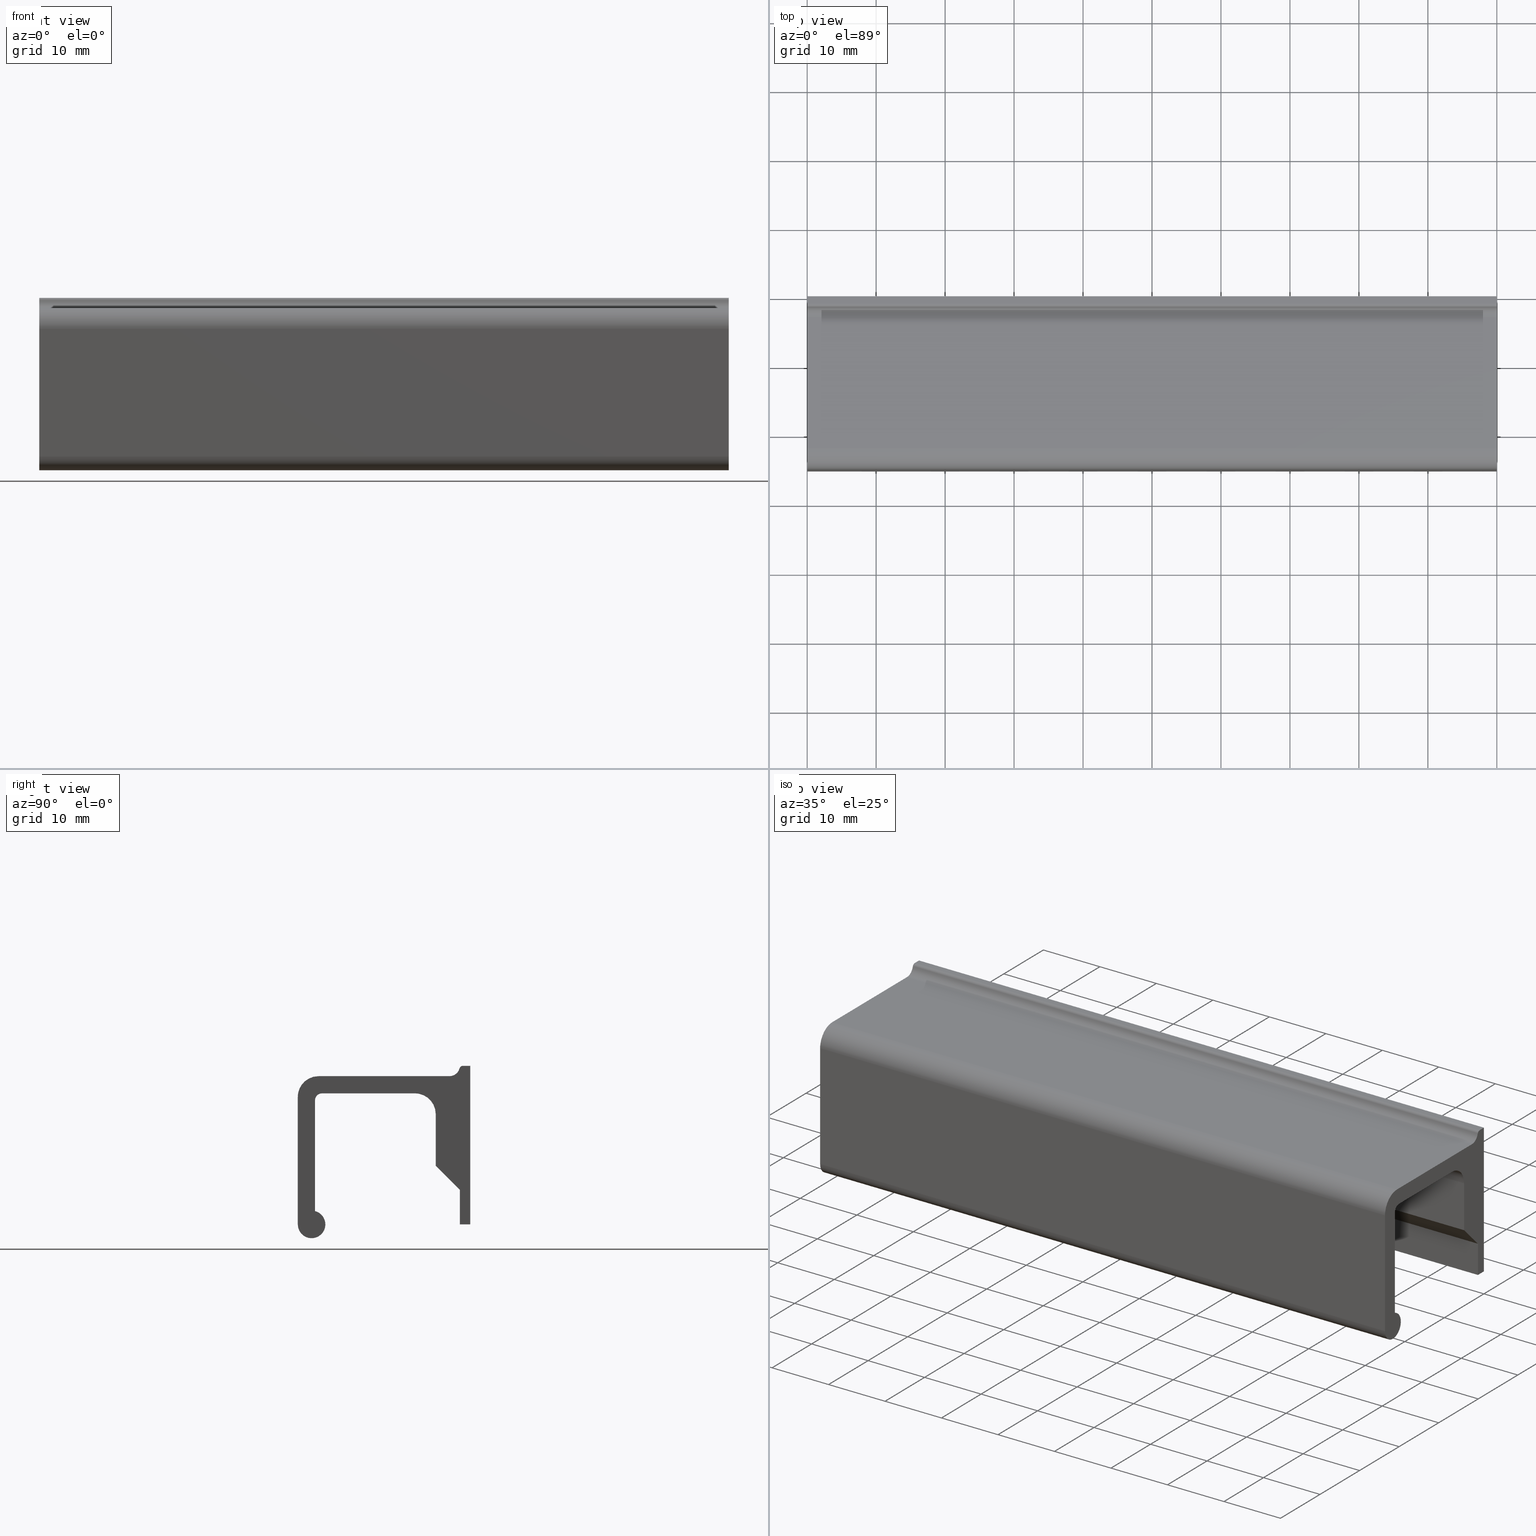
[diagram: canonical four-view strip — front | top / right | iso, engineering-drawing reading convention]
A machine part, canonical four-view strip (front | top / right | iso — engineering-drawing reading convention). The complete STEP part file that produces these views, byte-faithful:
ISO-10303-21;
HEADER;
/****************************************************************
 * Generated by software with PDE/Lib inside                    *
 * PDElib Version 4.4.1-0003, patched  Thursday August 19 11:58 *
 * International Technegroup Inc. (www.iti-oh.com)              *
 ****************************************************************/
FILE_DESCRIPTION((''),'2;1');
FILE_NAME('','2005-10-07T12:38:59',(''),(''),'','CADfix','');
FILE_SCHEMA(('AUTOMOTIVE_DESIGN'));
ENDSEC;
DATA;
#5=APPLICATION_CONTEXT('automotive design');
#6=APPLICATION_PROTOCOL_DEFINITION('Draft International Standard','automotive_design',1998,#5);
#7=PRODUCT_CONTEXT('None',#5,'mechanical');
#8=PRODUCT('pull','','None',(#7));
#9=PRODUCT_RELATED_PRODUCT_CATEGORY('part','description',(#8));
#10=PRODUCT_DEFINITION_FORMATION('None','None',#8);
#11=PRODUCT_DEFINITION_CONTEXT('part definition',#5,'design');
#12=PRODUCT_DEFINITION('None','None',#10,#11);
#18=(NAMED_UNIT(*)PLANE_ANGLE_UNIT()SI_UNIT($,.RADIAN.));
#19=DIMENSIONAL_EXPONENTS(0.0,0.0,0.0,0.0,0.0,0.0,0.0);
#20=PLANE_ANGLE_MEASURE_WITH_UNIT(PLANE_ANGLE_MEASURE(0.017453292500000),#18);
#24=(CONVERSION_BASED_UNIT('DEGREE',#20)NAMED_UNIT(#19)PLANE_ANGLE_UNIT());
#28=(NAMED_UNIT(*)SI_UNIT($,.STERADIAN.)SOLID_ANGLE_UNIT());
#32=(LENGTH_UNIT()NAMED_UNIT(*)SI_UNIT(.MILLI.,.METRE.));
#34=UNCERTAINTY_MEASURE_WITH_UNIT(LENGTH_MEASURE(0.001000000000000),#32,'DISTANCE_ACCURACY_VALUE','');
#36=(GEOMETRIC_REPRESENTATION_CONTEXT(3)GLOBAL_UNCERTAINTY_ASSIGNED_CONTEXT((#34))GLOBAL_UNIT_ASSIGNED_CONTEXT((#24,#28,#32))REPRESENTATION_CONTEXT('None','None'));
#37=AXIS2_PLACEMENT_3D('',#38,#39,#40);
#38=CARTESIAN_POINT('',(0.0,0.0,0.0));
#39=DIRECTION('',(0.0,0.0,1.0));
#40=DIRECTION('',(1.0,0.0,0.0));
#41=ADVANCED_BREP_SHAPE_REPRESENTATION('',(#37,#707),#36);
#42=PRODUCT_DEFINITION_SHAPE('','',#12);
#43=SHAPE_DEFINITION_REPRESENTATION(#42,#41);
#44=CARTESIAN_POINT('',(0.0,-26.248749951545150,1.248542813103981));
#45=CARTESIAN_POINT('',(0.0,1.248750622097403,1.248542813103981));
#46=CARTESIAN_POINT('',(0.0,-26.248749951545150,-26.244396567910631));
#47=CARTESIAN_POINT('',(0.0,1.248750622097403,-26.244396567910631));
#48=B_SPLINE_SURFACE_WITH_KNOTS('',1,1,((#44,#46),(#45,#47)),.UNSPECIFIED.,.F.,.F.,.U.,(2,2),(2,2),(0.0,27.497500573642551),(0.0,27.492939381014612),.UNSPECIFIED.);
#49=CARTESIAN_POINT('',(0.0,-1.063500000000118,-6.511844E-017));
#50=VERTEX_POINT('',#49);
#51=CARTESIAN_POINT('',(0.0,-1.547630854851320,-0.374998488290413));
#52=VERTEX_POINT('',#51);
#53=CARTESIAN_POINT('',(0.0,-1.063500000000118,-6.511844E-017));
#54=CARTESIAN_POINT('',(0.0,-1.450802654198313,0.000001007806392));
#55=CARTESIAN_POINT('',(0.0,-1.547630854851320,-0.374998488290413));
#63=(BOUNDED_CURVE()B_SPLINE_CURVE(2,(#53,#54,#55),.UNSPECIFIED.,.F.,.U.)CURVE()GEOMETRIC_REPRESENTATION_ITEM()QUASI_UNIFORM_CURVE()RATIONAL_B_SPLINE_CURVE((1.0,0.790569096345667,1.0))REPRESENTATION_ITEM(''));
#64=EDGE_CURVE('',#50,#52,#63,.T.);
#65=ORIENTED_EDGE('',*,*,#64,.F.);
#66=CARTESIAN_POINT('',(0.0,0.0,0.0));
#67=VERTEX_POINT('',#66);
#68=CARTESIAN_POINT('',(0.0,0.0,0.0));
#69=CARTESIAN_POINT('',(0.0,-1.063500000000118,-6.511844E-017));
#70=QUASI_UNIFORM_CURVE('',1,(#68,#69),.UNSPECIFIED.,.F.,.U.);
#71=EDGE_CURVE('',#67,#50,#70,.T.);
#72=ORIENTED_EDGE('',*,*,#71,.F.);
#73=CARTESIAN_POINT('',(0.0,0.0,-23.0));
#74=VERTEX_POINT('',#73);
#75=CARTESIAN_POINT('',(0.0,0.0,-23.0));
#76=CARTESIAN_POINT('',(0.0,0.0,0.0));
#77=QUASI_UNIFORM_CURVE('',1,(#75,#76),.UNSPECIFIED.,.F.,.U.);
#78=EDGE_CURVE('',#74,#67,#77,.T.);
#79=ORIENTED_EDGE('',*,*,#78,.F.);
#80=CARTESIAN_POINT('',(0.0,-1.500000000000000,-23.0));
#81=VERTEX_POINT('',#80);
#82=CARTESIAN_POINT('',(0.0,-1.500000000000000,-23.0));
#83=CARTESIAN_POINT('',(0.0,0.0,-23.0));
#84=QUASI_UNIFORM_CURVE('',1,(#82,#83),.UNSPECIFIED.,.F.,.U.);
#85=EDGE_CURVE('',#81,#74,#84,.T.);
#86=ORIENTED_EDGE('',*,*,#85,.F.);
#87=CARTESIAN_POINT('',(0.0,-1.500000000000000,-18.0));
#88=VERTEX_POINT('',#87);
#89=CARTESIAN_POINT('',(0.0,-1.500000000000000,-18.0));
#90=CARTESIAN_POINT('',(0.0,-1.500000000000000,-23.0));
#91=QUASI_UNIFORM_CURVE('',1,(#89,#90),.UNSPECIFIED.,.F.,.U.);
#92=EDGE_CURVE('',#88,#81,#91,.T.);
#93=ORIENTED_EDGE('',*,*,#92,.F.);
#94=CARTESIAN_POINT('',(0.0,-5.0,-14.500000000000000));
#95=VERTEX_POINT('',#94);
#96=CARTESIAN_POINT('',(0.0,-5.0,-14.500000000000000));
#97=CARTESIAN_POINT('',(0.0,-1.500000000000000,-18.0));
#98=QUASI_UNIFORM_CURVE('',1,(#96,#97),.UNSPECIFIED.,.F.,.U.);
#99=EDGE_CURVE('',#95,#88,#98,.T.);
#100=ORIENTED_EDGE('',*,*,#99,.F.);
#101=CARTESIAN_POINT('',(0.0,-5.0,-7.0));
#102=VERTEX_POINT('',#101);
#103=CARTESIAN_POINT('',(0.0,-5.0,-7.0));
#104=CARTESIAN_POINT('',(0.0,-5.0,-14.500000000000000));
#105=QUASI_UNIFORM_CURVE('',1,(#103,#104),.UNSPECIFIED.,.F.,.U.);
#106=EDGE_CURVE('',#102,#95,#105,.T.);
#107=ORIENTED_EDGE('',*,*,#106,.F.);
#108=CARTESIAN_POINT('',(0.0,-8.0,-4.0));
#109=VERTEX_POINT('',#108);
#110=CARTESIAN_POINT('',(0.0,-5.0,-7.0));
#111=CARTESIAN_POINT('',(0.0,-5.000000000000001,-4.000000000000000));
#112=CARTESIAN_POINT('',(0.0,-8.0,-4.0));
#120=(BOUNDED_CURVE()B_SPLINE_CURVE(2,(#110,#111,#112),.UNSPECIFIED.,.F.,.U.)CURVE()GEOMETRIC_REPRESENTATION_ITEM()QUASI_UNIFORM_CURVE()RATIONAL_B_SPLINE_CURVE((1.0,0.707106781186548,1.0))REPRESENTATION_ITEM(''));
#121=EDGE_CURVE('',#102,#109,#120,.T.);
#122=ORIENTED_EDGE('',*,*,#121,.T.);
#123=CARTESIAN_POINT('',(0.0,-21.500000000000000,-4.0));
#124=VERTEX_POINT('',#123);
#125=CARTESIAN_POINT('',(0.0,-21.500000000000000,-4.0));
#126=CARTESIAN_POINT('',(0.0,-8.0,-4.0));
#127=QUASI_UNIFORM_CURVE('',1,(#125,#126),.UNSPECIFIED.,.F.,.U.);
#128=EDGE_CURVE('',#124,#109,#127,.T.);
#129=ORIENTED_EDGE('',*,*,#128,.F.);
#130=CARTESIAN_POINT('',(0.0,-22.500000000000000,-5.0));
#131=VERTEX_POINT('',#130);
#132=CARTESIAN_POINT('',(0.0,-21.500000000000000,-4.0));
#133=CARTESIAN_POINT('',(0.0,-22.500000000000000,-4.000000000000000));
#134=CARTESIAN_POINT('',(0.0,-22.500000000000000,-5.0));
#142=(BOUNDED_CURVE()B_SPLINE_CURVE(2,(#132,#133,#134),.UNSPECIFIED.,.F.,.U.)CURVE()GEOMETRIC_REPRESENTATION_ITEM()QUASI_UNIFORM_CURVE()RATIONAL_B_SPLINE_CURVE((1.0,0.707106781186548,1.0))REPRESENTATION_ITEM(''));
#143=EDGE_CURVE('',#124,#131,#142,.T.);
#144=ORIENTED_EDGE('',*,*,#143,.T.);
#145=CARTESIAN_POINT('',(0.0,-22.500000000000000,-21.063508326896400));
#146=VERTEX_POINT('',#145);
#147=CARTESIAN_POINT('',(0.0,-22.500000000000000,-21.063508326896400));
#148=CARTESIAN_POINT('',(0.0,-22.500000000000000,-5.0));
#149=QUASI_UNIFORM_CURVE('',1,(#147,#148),.UNSPECIFIED.,.F.,.U.);
#150=EDGE_CURVE('',#146,#131,#149,.T.);
#151=ORIENTED_EDGE('',*,*,#150,.F.);
#152=CARTESIAN_POINT('',(0.0,-25.0,-23.0));
#153=VERTEX_POINT('',#152);
#154=CARTESIAN_POINT('',(0.0,-25.0,-23.0));
#155=CARTESIAN_POINT('',(0.0,-24.999999999999993,-24.838262194303105));
#156=CARTESIAN_POINT('',(0.0,-23.168254401781031,-24.992910047212700));
#157=CARTESIAN_POINT('',(0.0,-21.336508803562065,-25.147557900122276));
#158=CARTESIAN_POINT('',(0.0,-21.028309543718699,-23.335315887797190));
#159=CARTESIAN_POINT('',(0.0,-20.720110283875314,-21.523073875472090));
#160=CARTESIAN_POINT('',(0.0,-22.500000000000000,-21.063508326896400));
#168=(BOUNDED_CURVE()B_SPLINE_CURVE(2,(#154,#155,#156,#157,#158,#159,#160),.UNSPECIFIED.,.F.,.U.)B_SPLINE_CURVE_WITH_KNOTS((3,2,2,3),(0.0,0.333333333333333,0.666666666666667,1.0),.UNSPECIFIED.)CURVE()GEOMETRIC_REPRESENTATION_ITEM()RATIONAL_B_SPLINE_CURVE((1.0,0.736249686210635,1.0,0.736249686210635,1.0,0.736249686210635,1.0))REPRESENTATION_ITEM(''));
#169=EDGE_CURVE('',#153,#146,#168,.T.);
#170=ORIENTED_EDGE('',*,*,#169,.F.);
#171=CARTESIAN_POINT('',(0.0,-25.0,-4.500000000000200));
#172=VERTEX_POINT('',#171);
#173=CARTESIAN_POINT('',(0.0,-25.0,-4.500000000000200));
#174=CARTESIAN_POINT('',(0.0,-25.0,-23.0));
#175=QUASI_UNIFORM_CURVE('',1,(#173,#174),.UNSPECIFIED.,.F.,.U.);
#176=EDGE_CURVE('',#172,#153,#175,.T.);
#177=ORIENTED_EDGE('',*,*,#176,.F.);
#178=CARTESIAN_POINT('',(0.0,-22.0,-1.500000000000000));
#179=VERTEX_POINT('',#178);
#180=CARTESIAN_POINT('',(0.0,-22.0,-1.500000000000000));
#181=CARTESIAN_POINT('',(0.0,-25.0,-1.500000000000201));
#182=CARTESIAN_POINT('',(0.0,-25.0,-4.500000000000200));
#190=(BOUNDED_CURVE()B_SPLINE_CURVE(2,(#180,#181,#182),.UNSPECIFIED.,.F.,.U.)CURVE()GEOMETRIC_REPRESENTATION_ITEM()QUASI_UNIFORM_CURVE()RATIONAL_B_SPLINE_CURVE((1.0,0.707106781186548,1.0))REPRESENTATION_ITEM(''));
#191=EDGE_CURVE('',#179,#172,#190,.T.);
#192=ORIENTED_EDGE('',*,*,#191,.F.);
#193=CARTESIAN_POINT('',(0.0,-3.0,-1.500000000000000));
#194=VERTEX_POINT('',#193);
#195=CARTESIAN_POINT('',(0.0,-3.0,-1.500000000000000));
#196=CARTESIAN_POINT('',(0.0,-22.0,-1.500000000000000));
#197=QUASI_UNIFORM_CURVE('',1,(#195,#196),.UNSPECIFIED.,.F.,.U.);
#198=EDGE_CURVE('',#194,#179,#197,.T.);
#199=ORIENTED_EDGE('',*,*,#198,.F.);
#200=CARTESIAN_POINT('',(0.0,-3.0,-1.500000000000000));
#201=CARTESIAN_POINT('',(0.0,-1.838103747107881,-1.500000000000000));
#202=CARTESIAN_POINT('',(0.0,-1.547630854851321,-0.374998488290413));
#210=(BOUNDED_CURVE()B_SPLINE_CURVE(2,(#200,#201,#202),.UNSPECIFIED.,.F.,.U.)CURVE()GEOMETRIC_REPRESENTATION_ITEM()QUASI_UNIFORM_CURVE()RATIONAL_B_SPLINE_CURVE((1.0,0.790569096345667,1.0))REPRESENTATION_ITEM(''));
#211=EDGE_CURVE('',#194,#52,#210,.T.);
#212=ORIENTED_EDGE('',*,*,#211,.T.);
#213=EDGE_LOOP('',(#65,#72,#79,#86,#93,#100,#107,#122,#129,#144,#151,#170,#177,#192,#199,#212));
#214=FACE_OUTER_BOUND('',#213,.T.);
#215=ADVANCED_FACE('',(#214),#48,.T.);
#216=CARTESIAN_POINT('',(100.0,-26.248749951545150,1.248542813103981));
#217=CARTESIAN_POINT('',(100.0,1.248750622097403,1.248542813103981));
#218=CARTESIAN_POINT('',(100.0,-26.248749951545150,-26.244396567910631));
#219=CARTESIAN_POINT('',(100.0,1.248750622097403,-26.244396567910631));
#220=B_SPLINE_SURFACE_WITH_KNOTS('',1,1,((#216,#218),(#217,#219)),.UNSPECIFIED.,.F.,.F.,.U.,(2,2),(2,2),(0.0,27.497500573642551),(0.0,27.492939381014612),.UNSPECIFIED.);
#221=CARTESIAN_POINT('',(100.0,-1.063500000000118,-6.511844E-017));
#222=VERTEX_POINT('',#221);
#223=CARTESIAN_POINT('',(100.0,-1.547630854851320,-0.374998488290413));
#224=VERTEX_POINT('',#223);
#225=CARTESIAN_POINT('',(100.0,-1.063500000000118,-6.511844E-017));
#226=CARTESIAN_POINT('',(100.0,-1.450802654198313,0.000001007806392));
#227=CARTESIAN_POINT('',(100.0,-1.547630854851320,-0.374998488290413));
#235=(BOUNDED_CURVE()B_SPLINE_CURVE(2,(#225,#226,#227),.UNSPECIFIED.,.F.,.U.)CURVE()GEOMETRIC_REPRESENTATION_ITEM()QUASI_UNIFORM_CURVE()RATIONAL_B_SPLINE_CURVE((1.0,0.790569096345667,1.0))REPRESENTATION_ITEM(''));
#236=EDGE_CURVE('',#222,#224,#235,.T.);
#237=ORIENTED_EDGE('',*,*,#236,.T.);
#238=CARTESIAN_POINT('',(100.0,-3.0,-1.500000000000000));
#239=VERTEX_POINT('',#238);
#240=CARTESIAN_POINT('',(100.0,-3.0,-1.500000000000000));
#241=CARTESIAN_POINT('',(99.999999999999986,-1.838103747107881,-1.500000000000000));
#242=CARTESIAN_POINT('',(100.0,-1.547630854851321,-0.374998488290413));
#250=(BOUNDED_CURVE()B_SPLINE_CURVE(2,(#240,#241,#242),.UNSPECIFIED.,.F.,.U.)CURVE()GEOMETRIC_REPRESENTATION_ITEM()QUASI_UNIFORM_CURVE()RATIONAL_B_SPLINE_CURVE((1.0,0.790569096345667,1.0))REPRESENTATION_ITEM(''));
#251=EDGE_CURVE('',#239,#224,#250,.T.);
#252=ORIENTED_EDGE('',*,*,#251,.F.);
#253=CARTESIAN_POINT('',(100.0,-22.0,-1.500000000000000));
#254=VERTEX_POINT('',#253);
#255=CARTESIAN_POINT('',(100.0,-3.0,-1.500000000000000));
#256=CARTESIAN_POINT('',(100.0,-22.0,-1.500000000000000));
#257=QUASI_UNIFORM_CURVE('',1,(#255,#256),.UNSPECIFIED.,.F.,.U.);
#258=EDGE_CURVE('',#239,#254,#257,.T.);
#259=ORIENTED_EDGE('',*,*,#258,.T.);
#260=CARTESIAN_POINT('',(100.0,-25.0,-4.500000000000200));
#261=VERTEX_POINT('',#260);
#262=CARTESIAN_POINT('',(100.0,-22.0,-1.500000000000200));
#263=CARTESIAN_POINT('',(100.0,-25.0,-1.500000000000201));
#264=CARTESIAN_POINT('',(100.0,-25.0,-4.500000000000200));
#272=(BOUNDED_CURVE()B_SPLINE_CURVE(2,(#262,#263,#264),.UNSPECIFIED.,.F.,.U.)CURVE()GEOMETRIC_REPRESENTATION_ITEM()QUASI_UNIFORM_CURVE()RATIONAL_B_SPLINE_CURVE((1.0,0.707106781186548,1.0))REPRESENTATION_ITEM(''));
#273=EDGE_CURVE('',#254,#261,#272,.T.);
#274=ORIENTED_EDGE('',*,*,#273,.T.);
#275=CARTESIAN_POINT('',(100.0,-25.0,-23.0));
#276=VERTEX_POINT('',#275);
#277=CARTESIAN_POINT('',(100.0,-25.0,-4.500000000000200));
#278=CARTESIAN_POINT('',(100.0,-25.0,-23.0));
#279=QUASI_UNIFORM_CURVE('',1,(#277,#278),.UNSPECIFIED.,.F.,.U.);
#280=EDGE_CURVE('',#261,#276,#279,.T.);
#281=ORIENTED_EDGE('',*,*,#280,.T.);
#282=CARTESIAN_POINT('',(100.0,-22.500000000000000,-21.063508326896400));
#283=VERTEX_POINT('',#282);
#284=CARTESIAN_POINT('',(100.0,-25.0,-23.0));
#285=CARTESIAN_POINT('',(99.999999999999986,-24.999999999999993,-24.838262194303105));
#286=CARTESIAN_POINT('',(100.0,-23.168254401781031,-24.992910047212700));
#287=CARTESIAN_POINT('',(99.999999999999986,-21.336508803562065,-25.147557900122276));
#288=CARTESIAN_POINT('',(100.0,-21.028309543718699,-23.335315887797190));
#289=CARTESIAN_POINT('',(99.999999999999986,-20.720110283875314,-21.523073875472090));
#290=CARTESIAN_POINT('',(100.0,-22.499999999999972,-21.063508326896301));
#298=(BOUNDED_CURVE()B_SPLINE_CURVE(2,(#284,#285,#286,#287,#288,#289,#290),.UNSPECIFIED.,.F.,.U.)B_SPLINE_CURVE_WITH_KNOTS((3,2,2,3),(0.0,0.333333333333333,0.666666666666667,1.0),.UNSPECIFIED.)CURVE()GEOMETRIC_REPRESENTATION_ITEM()RATIONAL_B_SPLINE_CURVE((1.0,0.736249686210635,1.0,0.736249686210635,1.0,0.736249686210635,1.0))REPRESENTATION_ITEM(''));
#299=EDGE_CURVE('',#276,#283,#298,.T.);
#300=ORIENTED_EDGE('',*,*,#299,.T.);
#301=CARTESIAN_POINT('',(100.0,-22.500000000000000,-5.0));
#302=VERTEX_POINT('',#301);
#303=CARTESIAN_POINT('',(100.0,-22.500000000000000,-21.063508326896400));
#304=CARTESIAN_POINT('',(100.0,-22.500000000000000,-5.0));
#305=QUASI_UNIFORM_CURVE('',1,(#303,#304),.UNSPECIFIED.,.F.,.U.);
#306=EDGE_CURVE('',#283,#302,#305,.T.);
#307=ORIENTED_EDGE('',*,*,#306,.T.);
#308=CARTESIAN_POINT('',(100.0,-21.500000000000000,-4.0));
#309=VERTEX_POINT('',#308);
#310=CARTESIAN_POINT('',(100.0,-21.500000000000000,-4.0));
#311=CARTESIAN_POINT('',(100.0,-22.500000000000000,-4.000000000000000));
#312=CARTESIAN_POINT('',(100.0,-22.500000000000000,-5.0));
#320=(BOUNDED_CURVE()B_SPLINE_CURVE(2,(#310,#311,#312),.UNSPECIFIED.,.F.,.U.)CURVE()GEOMETRIC_REPRESENTATION_ITEM()QUASI_UNIFORM_CURVE()RATIONAL_B_SPLINE_CURVE((1.0,0.707106781186548,1.0))REPRESENTATION_ITEM(''));
#321=EDGE_CURVE('',#309,#302,#320,.T.);
#322=ORIENTED_EDGE('',*,*,#321,.F.);
#323=CARTESIAN_POINT('',(100.0,-8.0,-4.0));
#324=VERTEX_POINT('',#323);
#325=CARTESIAN_POINT('',(100.0,-21.500000000000000,-4.0));
#326=CARTESIAN_POINT('',(100.0,-8.0,-4.0));
#327=QUASI_UNIFORM_CURVE('',1,(#325,#326),.UNSPECIFIED.,.F.,.U.);
#328=EDGE_CURVE('',#309,#324,#327,.T.);
#329=ORIENTED_EDGE('',*,*,#328,.T.);
#330=CARTESIAN_POINT('',(100.0,-5.0,-7.0));
#331=VERTEX_POINT('',#330);
#332=CARTESIAN_POINT('',(100.0,-5.0,-7.0));
#333=CARTESIAN_POINT('',(100.0,-5.000000000000001,-4.000000000000000));
#334=CARTESIAN_POINT('',(100.0,-8.0,-4.0));
#342=(BOUNDED_CURVE()B_SPLINE_CURVE(2,(#332,#333,#334),.UNSPECIFIED.,.F.,.U.)CURVE()GEOMETRIC_REPRESENTATION_ITEM()QUASI_UNIFORM_CURVE()RATIONAL_B_SPLINE_CURVE((1.0,0.707106781186548,1.0))REPRESENTATION_ITEM(''));
#343=EDGE_CURVE('',#331,#324,#342,.T.);
#344=ORIENTED_EDGE('',*,*,#343,.F.);
#345=CARTESIAN_POINT('',(100.0,-5.0,-14.500000000000000));
#346=VERTEX_POINT('',#345);
#347=CARTESIAN_POINT('',(100.0,-5.0,-7.0));
#348=CARTESIAN_POINT('',(100.0,-5.0,-14.500000000000000));
#349=QUASI_UNIFORM_CURVE('',1,(#347,#348),.UNSPECIFIED.,.F.,.U.);
#350=EDGE_CURVE('',#331,#346,#349,.T.);
#351=ORIENTED_EDGE('',*,*,#350,.T.);
#352=CARTESIAN_POINT('',(100.0,-1.500000000000000,-18.0));
#353=VERTEX_POINT('',#352);
#354=CARTESIAN_POINT('',(100.0,-5.0,-14.500000000000000));
#355=CARTESIAN_POINT('',(100.0,-1.500000000000000,-18.0));
#356=QUASI_UNIFORM_CURVE('',1,(#354,#355),.UNSPECIFIED.,.F.,.U.);
#357=EDGE_CURVE('',#346,#353,#356,.T.);
#358=ORIENTED_EDGE('',*,*,#357,.T.);
#359=CARTESIAN_POINT('',(100.0,-1.500000000000000,-23.0));
#360=VERTEX_POINT('',#359);
#361=CARTESIAN_POINT('',(100.0,-1.500000000000000,-18.0));
#362=CARTESIAN_POINT('',(100.0,-1.500000000000000,-23.0));
#363=QUASI_UNIFORM_CURVE('',1,(#361,#362),.UNSPECIFIED.,.F.,.U.);
#364=EDGE_CURVE('',#353,#360,#363,.T.);
#365=ORIENTED_EDGE('',*,*,#364,.T.);
#366=CARTESIAN_POINT('',(100.0,0.0,-23.0));
#367=VERTEX_POINT('',#366);
#368=CARTESIAN_POINT('',(100.0,-1.500000000000000,-23.0));
#369=CARTESIAN_POINT('',(100.0,0.0,-23.0));
#370=QUASI_UNIFORM_CURVE('',1,(#368,#369),.UNSPECIFIED.,.F.,.U.);
#371=EDGE_CURVE('',#360,#367,#370,.T.);
#372=ORIENTED_EDGE('',*,*,#371,.T.);
#373=CARTESIAN_POINT('',(100.0,0.0,0.0));
#374=VERTEX_POINT('',#373);
#375=CARTESIAN_POINT('',(100.0,0.0,-23.0));
#376=CARTESIAN_POINT('',(100.0,0.0,0.0));
#377=QUASI_UNIFORM_CURVE('',1,(#375,#376),.UNSPECIFIED.,.F.,.U.);
#378=EDGE_CURVE('',#367,#374,#377,.T.);
#379=ORIENTED_EDGE('',*,*,#378,.T.);
#380=CARTESIAN_POINT('',(100.0,0.0,0.0));
#381=CARTESIAN_POINT('',(100.0,-1.063500000000118,-6.511844E-017));
#382=QUASI_UNIFORM_CURVE('',1,(#380,#381),.UNSPECIFIED.,.F.,.U.);
#383=EDGE_CURVE('',#374,#222,#382,.T.);
#384=ORIENTED_EDGE('',*,*,#383,.T.);
#385=EDGE_LOOP('',(#237,#252,#259,#274,#281,#300,#307,#322,#329,#344,#351,#358,#365,#372,#379,#384));
#386=FACE_OUTER_BOUND('',#385,.T.);
#387=ADVANCED_FACE('',(#386),#220,.F.);
#388=CARTESIAN_POINT('',(-4.994999806180597,-1.116621872855740,0.0));
#389=CARTESIAN_POINT('',(-4.994999806180597,0.053121853838760,0.0));
#390=CARTESIAN_POINT('',(104.995002488389600,-1.116621872855740,0.0));
#391=CARTESIAN_POINT('',(104.995002488389600,0.053121853838760,0.0));
#392=B_SPLINE_SURFACE_WITH_KNOTS('',1,1,((#388,#390),(#389,#391)),.UNSPECIFIED.,.F.,.F.,.U.,(2,2),(2,2),(0.041708295834810,0.958291689264029),(0.0,109.990002294570200),.UNSPECIFIED.);
#393=ORIENTED_EDGE('',*,*,#71,.T.);
#394=CARTESIAN_POINT('',(100.0,-1.063500000000118,-6.511844E-017));
#395=CARTESIAN_POINT('',(0.0,-1.063500000000118,-6.511844E-017));
#396=QUASI_UNIFORM_CURVE('',1,(#394,#395),.UNSPECIFIED.,.F.,.U.);
#397=EDGE_CURVE('',#222,#50,#396,.T.);
#398=ORIENTED_EDGE('',*,*,#397,.F.);
#399=ORIENTED_EDGE('',*,*,#383,.F.);
#400=CARTESIAN_POINT('',(100.0,0.0,0.0));
#401=CARTESIAN_POINT('',(0.0,0.0,0.0));
#402=QUASI_UNIFORM_CURVE('',1,(#400,#401),.UNSPECIFIED.,.F.,.U.);
#403=EDGE_CURVE('',#374,#67,#402,.T.);
#404=ORIENTED_EDGE('',*,*,#403,.T.);
#405=EDGE_LOOP('',(#393,#398,#399,#404));
#406=FACE_OUTER_BOUND('',#405,.T.);
#407=ADVANCED_FACE('',(#406),#392,.F.);
#408=CARTESIAN_POINT('',(-4.994999806180597,0.0,1.148849955421538));
#409=CARTESIAN_POINT('',(-4.994999806180597,0.0,-24.148850572329611));
#410=CARTESIAN_POINT('',(104.995002488389600,0.0,1.148849955421538));
#411=CARTESIAN_POINT('',(104.995002488389600,0.0,-24.148850572329611));
#412=B_SPLINE_SURFACE_WITH_KNOTS('',1,1,((#408,#410),(#409,#411)),.UNSPECIFIED.,.F.,.F.,.U.,(2,2),(2,2),(0.0,25.297700527751150),(0.0,109.990002294570200),.UNSPECIFIED.);
#413=ORIENTED_EDGE('',*,*,#78,.T.);
#414=ORIENTED_EDGE('',*,*,#403,.F.);
#415=ORIENTED_EDGE('',*,*,#378,.F.);
#416=CARTESIAN_POINT('',(100.0,0.0,-23.0));
#417=CARTESIAN_POINT('',(0.0,0.0,-23.0));
#418=QUASI_UNIFORM_CURVE('',1,(#416,#417),.UNSPECIFIED.,.F.,.U.);
#419=EDGE_CURVE('',#367,#74,#418,.T.);
#420=ORIENTED_EDGE('',*,*,#419,.T.);
#421=EDGE_LOOP('',(#413,#414,#415,#420));
#422=FACE_OUTER_BOUND('',#421,.T.);
#423=ADVANCED_FACE('',(#422),#412,.F.);
#424=CARTESIAN_POINT('',(-4.994999806180597,-1.574924997092709,-23.0));
#425=CARTESIAN_POINT('',(104.995002488389600,-1.574924997092709,-23.0));
#426=CARTESIAN_POINT('',(-4.994999806180597,0.074925037325844,-23.0));
#427=CARTESIAN_POINT('',(104.995002488389600,0.074925037325844,-23.0));
#428=B_SPLINE_SURFACE_WITH_KNOTS('',1,1,((#424,#426),(#425,#427)),.UNSPECIFIED.,.F.,.F.,.U.,(2,2),(2,2),(0.0,109.990002294570200),(0.041708334948495,0.958291687403247),.UNSPECIFIED.);
#429=ORIENTED_EDGE('',*,*,#85,.T.);
#430=ORIENTED_EDGE('',*,*,#419,.F.);
#431=ORIENTED_EDGE('',*,*,#371,.F.);
#432=CARTESIAN_POINT('',(100.0,-1.500000000000000,-23.0));
#433=CARTESIAN_POINT('',(0.0,-1.500000000000000,-23.0));
#434=QUASI_UNIFORM_CURVE('',1,(#432,#433),.UNSPECIFIED.,.F.,.U.);
#435=EDGE_CURVE('',#360,#81,#434,.T.);
#436=ORIENTED_EDGE('',*,*,#435,.T.);
#437=EDGE_LOOP('',(#429,#430,#431,#436));
#438=FACE_OUTER_BOUND('',#437,.T.);
#439=ADVANCED_FACE('',(#438),#428,.F.);
#440=CARTESIAN_POINT('',(-4.994999806180597,-1.500000000000000,-23.249749990309031));
#441=CARTESIAN_POINT('',(-4.994999806180597,-1.500000000000000,-17.750249875580518));
#442=CARTESIAN_POINT('',(104.995002488389600,-1.500000000000000,-23.249749990309031));
#443=CARTESIAN_POINT('',(104.995002488389600,-1.500000000000000,-17.750249875580518));
#444=B_SPLINE_SURFACE_WITH_KNOTS('',1,1,((#440,#442),(#441,#443)),.UNSPECIFIED.,.F.,.F.,.U.,(2,2),(2,2),(0.0,5.499500114728519),(0.0,109.990002294570200),.UNSPECIFIED.);
#445=ORIENTED_EDGE('',*,*,#92,.T.);
#446=ORIENTED_EDGE('',*,*,#435,.F.);
#447=ORIENTED_EDGE('',*,*,#364,.F.);
#448=CARTESIAN_POINT('',(100.0,-1.500000000000000,-18.0));
#449=CARTESIAN_POINT('',(0.0,-1.500000000000000,-18.0));
#450=QUASI_UNIFORM_CURVE('',1,(#448,#449),.UNSPECIFIED.,.F.,.U.);
#451=EDGE_CURVE('',#353,#88,#450,.T.);
#452=ORIENTED_EDGE('',*,*,#451,.T.);
#453=EDGE_LOOP('',(#445,#446,#447,#452));
#454=FACE_OUTER_BOUND('',#453,.T.);
#455=ADVANCED_FACE('',(#454),#444,.F.);
#456=CARTESIAN_POINT('',(-4.994999806180592,-1.325175006783679,-18.174824993216319));
#457=CARTESIAN_POINT('',(-4.994999806180592,-5.174825087093637,-14.325174912906361));
#458=CARTESIAN_POINT('',(104.995002488389600,-1.325175006783679,-18.174824993216319));
#459=CARTESIAN_POINT('',(104.995002488389600,-5.174825087093637,-14.325174912906361));
#460=B_SPLINE_SURFACE_WITH_KNOTS('',1,1,((#456,#458),(#457,#459)),.UNSPECIFIED.,.F.,.F.,.U.,(2,2),(2,2),(0.0,5.444227353965016),(0.0,109.990002294570200),.UNSPECIFIED.);
#461=ORIENTED_EDGE('',*,*,#99,.T.);
#462=ORIENTED_EDGE('',*,*,#451,.F.);
#463=ORIENTED_EDGE('',*,*,#357,.F.);
#464=CARTESIAN_POINT('',(100.0,-5.0,-14.500000000000000));
#465=CARTESIAN_POINT('',(0.0,-5.0,-14.500000000000000));
#466=QUASI_UNIFORM_CURVE('',1,(#464,#465),.UNSPECIFIED.,.F.,.U.);
#467=EDGE_CURVE('',#346,#95,#466,.T.);
#468=ORIENTED_EDGE('',*,*,#467,.T.);
#469=EDGE_LOOP('',(#461,#462,#463,#468));
#470=FACE_OUTER_BOUND('',#469,.T.);
#471=ADVANCED_FACE('',(#470),#460,.F.);
#472=CARTESIAN_POINT('',(-4.994999806180597,-5.0,-14.874624985463550));
#473=CARTESIAN_POINT('',(-4.994999806180597,-5.0,-6.625374813370778));
#474=CARTESIAN_POINT('',(104.995002488389600,-5.0,-14.874624985463550));
#475=CARTESIAN_POINT('',(104.995002488389600,-5.0,-6.625374813370778));
#476=B_SPLINE_SURFACE_WITH_KNOTS('',1,1,((#472,#474),(#473,#475)),.UNSPECIFIED.,.F.,.F.,.U.,(2,2),(2,2),(0.0,8.249250172092769),(0.0,109.990002294570200),.UNSPECIFIED.);
#477=ORIENTED_EDGE('',*,*,#106,.T.);
#478=ORIENTED_EDGE('',*,*,#467,.F.);
#479=ORIENTED_EDGE('',*,*,#350,.F.);
#480=CARTESIAN_POINT('',(100.0,-5.0,-7.0));
#481=CARTESIAN_POINT('',(0.0,-5.0,-7.0));
#482=QUASI_UNIFORM_CURVE('',1,(#480,#481),.UNSPECIFIED.,.F.,.U.);
#483=EDGE_CURVE('',#331,#102,#482,.T.);
#484=ORIENTED_EDGE('',*,*,#483,.T.);
#485=EDGE_LOOP('',(#477,#478,#479,#484));
#486=FACE_OUTER_BOUND('',#485,.T.);
#487=ADVANCED_FACE('',(#486),#476,.F.);
#488=CARTESIAN_POINT('',(102.500000000000000,-5.001028025073329,-7.078530844923621));
#489=CARTESIAN_POINT('',(-2.562500000000000,-5.001028025073329,-7.078530844923621));
#490=CARTESIAN_POINT('',(102.499999999999990,-4.914523219501215,-3.775045598335840));
#491=CARTESIAN_POINT('',(-2.562500000000000,-4.914523219501215,-3.775045598335840));
#492=CARTESIAN_POINT('',(102.500000000000040,-8.210960226877953,-4.007426561857570));
#493=CARTESIAN_POINT('',(-2.562500000000000,-8.210960226877953,-4.007426561857570));
#501=(BOUNDED_SURFACE()B_SPLINE_SURFACE(1,2,((#488,#490,#492),(#489,#491,#493)),.UNSPECIFIED.,.F.,.F.,.U.)B_SPLINE_SURFACE_WITH_KNOTS((2,2),(3,3),(0.0,105.062500000000000),(0.0,5.313427032265095),.UNSPECIFIED.)GEOMETRIC_REPRESENTATION_ITEM()RATIONAL_B_SPLINE_SURFACE(((1.0,0.670944223154768,0.996392648609106),(1.0,0.670944223154768,0.996392648609106)))REPRESENTATION_ITEM('')SURFACE());
#502=ORIENTED_EDGE('',*,*,#121,.F.);
#503=ORIENTED_EDGE('',*,*,#483,.F.);
#504=ORIENTED_EDGE('',*,*,#343,.T.);
#505=CARTESIAN_POINT('',(100.0,-8.0,-4.0));
#506=CARTESIAN_POINT('',(0.0,-8.0,-4.0));
#507=QUASI_UNIFORM_CURVE('',1,(#505,#506),.UNSPECIFIED.,.F.,.U.);
#508=EDGE_CURVE('',#324,#109,#507,.T.);
#509=ORIENTED_EDGE('',*,*,#508,.T.);
#510=EDGE_LOOP('',(#502,#503,#504,#509));
#511=FACE_OUTER_BOUND('',#510,.T.);
#512=ADVANCED_FACE('',(#511),#501,.F.);
#513=CARTESIAN_POINT('',(-4.994999806180597,-7.325675026165620,-4.0));
#514=CARTESIAN_POINT('',(-4.994999806180597,-22.174325335932600,-4.0));
#515=CARTESIAN_POINT('',(104.995002488389600,-7.325675026165620,-4.0));
#516=CARTESIAN_POINT('',(104.995002488389600,-22.174325335932600,-4.0));
#517=B_SPLINE_SURFACE_WITH_KNOTS('',1,1,((#513,#515),(#514,#516)),.UNSPECIFIED.,.F.,.F.,.U.,(2,2),(2,2),(0.0,14.848650309766979),(0.0,109.990002294570200),.UNSPECIFIED.);
#518=ORIENTED_EDGE('',*,*,#128,.T.);
#519=ORIENTED_EDGE('',*,*,#508,.F.);
#520=ORIENTED_EDGE('',*,*,#328,.F.);
#521=CARTESIAN_POINT('',(100.0,-21.500000000000000,-4.0));
#522=CARTESIAN_POINT('',(0.0,-21.500000000000000,-4.0));
#523=QUASI_UNIFORM_CURVE('',1,(#521,#522),.UNSPECIFIED.,.F.,.U.);
#524=EDGE_CURVE('',#309,#124,#523,.T.);
#525=ORIENTED_EDGE('',*,*,#524,.T.);
#526=EDGE_LOOP('',(#518,#519,#520,#525));
#527=FACE_OUTER_BOUND('',#526,.T.);
#528=ADVANCED_FACE('',(#527),#517,.F.);
#529=CARTESIAN_POINT('',(102.500000000000000,-21.473823051692129,-4.000342675024443));
#530=CARTESIAN_POINT('',(-2.562500000000000,-21.473823051692129,-4.000342675024443));
#531=CARTESIAN_POINT('',(102.499999999999990,-22.574984800554724,-3.971507739833738));
#532=CARTESIAN_POINT('',(-2.562500000000000,-22.574984800554724,-3.971507739833738));
#533=CARTESIAN_POINT('',(102.500000000000040,-22.497524479380807,-5.070320075625983));
#534=CARTESIAN_POINT('',(-2.562500000000000,-22.497524479380807,-5.070320075625983));
#542=(BOUNDED_SURFACE()B_SPLINE_SURFACE(1,2,((#529,#531,#533),(#530,#532,#534)),.UNSPECIFIED.,.F.,.F.,.U.)B_SPLINE_SURFACE_WITH_KNOTS((2,2),(3,3),(0.0,105.062500000000000),(0.0,0.994518632334191),.UNSPECIFIED.)GEOMETRIC_REPRESENTATION_ITEM()RATIONAL_B_SPLINE_SURFACE(((1.0,0.670944223154768,0.996392648609106),(1.0,0.670944223154768,0.996392648609106)))REPRESENTATION_ITEM('')SURFACE());
#543=ORIENTED_EDGE('',*,*,#143,.F.);
#544=ORIENTED_EDGE('',*,*,#524,.F.);
#545=ORIENTED_EDGE('',*,*,#321,.T.);
#546=CARTESIAN_POINT('',(100.0,-22.500000000000000,-5.0));
#547=CARTESIAN_POINT('',(0.0,-22.500000000000000,-5.0));
#548=QUASI_UNIFORM_CURVE('',1,(#546,#547),.UNSPECIFIED.,.F.,.U.);
#549=EDGE_CURVE('',#302,#131,#548,.T.);
#550=ORIENTED_EDGE('',*,*,#549,.T.);
#551=EDGE_LOOP('',(#543,#544,#545,#550));
#552=FACE_OUTER_BOUND('',#551,.T.);
#553=ADVANCED_FACE('',(#552),#542,.F.);
#554=CARTESIAN_POINT('',(-4.994999806180585,-22.500000000000000,-4.197627790205722));
#555=CARTESIAN_POINT('',(-4.994999806180585,-22.500000000000000,-21.865880967547550));
#556=CARTESIAN_POINT('',(104.995002488389600,-22.500000000000000,-4.197627790205722));
#557=CARTESIAN_POINT('',(104.995002488389600,-22.500000000000000,-21.865880967547550));
#558=B_SPLINE_SURFACE_WITH_KNOTS('',1,1,((#554,#556),(#555,#557)),.UNSPECIFIED.,.F.,.F.,.U.,(2,2),(2,2),(0.0,17.668253177341828),(0.0,109.990002294570200),.UNSPECIFIED.);
#559=ORIENTED_EDGE('',*,*,#150,.T.);
#560=ORIENTED_EDGE('',*,*,#549,.F.);
#561=ORIENTED_EDGE('',*,*,#306,.F.);
#562=CARTESIAN_POINT('',(100.0,-22.500000000000000,-21.063508326896400));
#563=CARTESIAN_POINT('',(0.0,-22.500000000000000,-21.063508326896400));
#564=QUASI_UNIFORM_CURVE('',1,(#562,#563),.UNSPECIFIED.,.F.,.U.);
#565=EDGE_CURVE('',#283,#146,#564,.T.);
#566=ORIENTED_EDGE('',*,*,#565,.T.);
#567=EDGE_LOOP('',(#559,#560,#561,#566));
#568=FACE_OUTER_BOUND('',#567,.T.);
#569=ADVANCED_FACE('',(#568),#558,.F.);
#570=CARTESIAN_POINT('',(102.500000000000000,-24.999314649951110,-22.947646103384251));
#571=CARTESIAN_POINT('',(-2.562500000000000,-24.999314649951110,-22.947646103384251));
#572=CARTESIAN_POINT('',(102.500000000000010,-25.048708003942743,-24.833902191837279));
#573=CARTESIAN_POINT('',(-2.562500000000000,-25.048708003942743,-24.833902191837279));
#574=CARTESIAN_POINT('',(102.500000000000000,-23.168515130368409,-24.992888017635948));
#575=CARTESIAN_POINT('',(-2.562500000000000,-23.168515130368409,-24.992888017635948));
#576=CARTESIAN_POINT('',(102.500000000000010,-21.288322256794057,-25.151873843434625));
#577=CARTESIAN_POINT('',(-2.562500000000000,-21.288322256794057,-25.151873843434625));
#578=CARTESIAN_POINT('',(102.500000000000000,-21.020281916897069,-23.284106162262109));
#579=CARTESIAN_POINT('',(-2.562500000000000,-21.020281916897069,-23.284106162262109));
#580=CARTESIAN_POINT('',(102.500000000000010,-20.752241577000085,-21.416338481089600));
#581=CARTESIAN_POINT('',(-2.562500000000000,-20.752241577000085,-21.416338481089600));
#582=CARTESIAN_POINT('',(102.500000000000000,-22.601264131165600,-21.040150590758341));
#583=CARTESIAN_POINT('',(-2.562500000000000,-22.601264131165600,-21.040150590758341));
#591=(BOUNDED_SURFACE()B_SPLINE_SURFACE(1,2,((#570,#572,#574,#576,#578,#580,#582),(#571,#573,#575,#577,#579,#581,#583)),.UNSPECIFIED.,.F.,.F.,.U.)B_SPLINE_SURFACE_WITH_KNOTS((2,2),(3,2,2,3),(0.0,105.062500000000000),(0.0,3.178196639581942,6.356393279163884,9.534589918745827),.UNSPECIFIED.)GEOMETRIC_REPRESENTATION_ITEM()RATIONAL_B_SPLINE_SURFACE(((1.0,0.727373641573049,1.0,0.727373641573049,1.0,0.727373641573049,1.0),(1.0,0.727373641573049,1.0,0.727373641573049,1.0,0.727373641573049,1.0)))REPRESENTATION_ITEM('')SURFACE());
#592=ORIENTED_EDGE('',*,*,#169,.T.);
#593=ORIENTED_EDGE('',*,*,#565,.F.);
#594=ORIENTED_EDGE('',*,*,#299,.F.);
#595=CARTESIAN_POINT('',(100.0,-25.0,-23.0));
#596=CARTESIAN_POINT('',(0.0,-25.0,-23.0));
#597=QUASI_UNIFORM_CURVE('',1,(#595,#596),.UNSPECIFIED.,.F.,.U.);
#598=EDGE_CURVE('',#276,#153,#597,.T.);
#599=ORIENTED_EDGE('',*,*,#598,.T.);
#600=EDGE_LOOP('',(#592,#593,#594,#599));
#601=FACE_OUTER_BOUND('',#600,.T.);
#602=ADVANCED_FACE('',(#601),#591,.T.);
#603=CARTESIAN_POINT('',(-4.994999806180585,-25.0,-23.924074964143401));
#604=CARTESIAN_POINT('',(-4.994999806180585,-25.0,-3.575924539648133));
#605=CARTESIAN_POINT('',(104.995002488389600,-25.0,-23.924074964143401));
#606=CARTESIAN_POINT('',(104.995002488389600,-25.0,-3.575924539648133));
#607=B_SPLINE_SURFACE_WITH_KNOTS('',1,1,((#603,#605),(#604,#606)),.UNSPECIFIED.,.F.,.F.,.U.,(2,2),(2,2),(0.0,20.348150424495270),(0.0,109.990002294570200),.UNSPECIFIED.);
#608=ORIENTED_EDGE('',*,*,#176,.T.);
#609=ORIENTED_EDGE('',*,*,#598,.F.);
#610=ORIENTED_EDGE('',*,*,#280,.F.);
#611=CARTESIAN_POINT('',(100.0,-25.0,-4.500000000000200));
#612=CARTESIAN_POINT('',(0.0,-25.0,-4.500000000000200));
#613=QUASI_UNIFORM_CURVE('',1,(#611,#612),.UNSPECIFIED.,.F.,.U.);
#614=EDGE_CURVE('',#261,#172,#613,.T.);
#615=ORIENTED_EDGE('',*,*,#614,.T.);
#616=EDGE_LOOP('',(#608,#609,#610,#615));
#617=FACE_OUTER_BOUND('',#616,.T.);
#618=ADVANCED_FACE('',(#617),#607,.F.);
#619=CARTESIAN_POINT('',(102.500000000000000,-21.973820393504880,-1.500114230807687));
#620=CARTESIAN_POINT('',(-2.562500000000000,-21.973820393504880,-1.500114230807687));
#621=CARTESIAN_POINT('',(102.500000000000030,-25.190804026035263,-1.472040039961563));
#622=CARTESIAN_POINT('',(-2.562500000000000,-25.190804026035263,-1.472040039961563));
#623=CARTESIAN_POINT('',(102.500000000000000,-24.994404395265612,-4.683145618604769));
#624=CARTESIAN_POINT('',(-2.562500000000000,-24.994404395265612,-4.683145618604769));
#632=(BOUNDED_SURFACE()B_SPLINE_SURFACE(1,2,((#619,#621,#623),(#620,#622,#624)),.UNSPECIFIED.,.F.,.F.,.U.)B_SPLINE_SURFACE_WITH_KNOTS((2,2),(3,3),(0.0,105.062500000000000),(0.0,5.217748499531202),.UNSPECIFIED.)GEOMETRIC_REPRESENTATION_ITEM()RATIONAL_B_SPLINE_SURFACE(((1.0,0.681998360062499,1.0),(1.0,0.681998360062499,1.0)))REPRESENTATION_ITEM('')SURFACE());
#633=ORIENTED_EDGE('',*,*,#191,.T.);
#634=ORIENTED_EDGE('',*,*,#614,.F.);
#635=ORIENTED_EDGE('',*,*,#273,.F.);
#636=CARTESIAN_POINT('',(100.0,-22.0,-1.500000000000000));
#637=CARTESIAN_POINT('',(0.0,-22.0,-1.500000000000000));
#638=QUASI_UNIFORM_CURVE('',1,(#636,#637),.UNSPECIFIED.,.F.,.U.);
#639=EDGE_CURVE('',#254,#179,#638,.T.);
#640=ORIENTED_EDGE('',*,*,#639,.T.);
#641=EDGE_LOOP('',(#633,#634,#635,#640));
#642=FACE_OUTER_BOUND('',#641,.T.);
#643=ADVANCED_FACE('',(#642),#632,.T.);
#644=CARTESIAN_POINT('',(104.994999806180600,-22.949049963174311,-1.500000000000000));
#645=CARTESIAN_POINT('',(-4.995002488389611,-22.949049963174311,-1.500000000000000));
#646=CARTESIAN_POINT('',(104.994999806180600,-2.050949527205976,-1.500000000000000));
#647=CARTESIAN_POINT('',(-4.995002488389611,-2.050949527205976,-1.500000000000000));
#648=B_SPLINE_SURFACE_WITH_KNOTS('',1,1,((#644,#646),(#645,#647)),.UNSPECIFIED.,.F.,.F.,.U.,(2,2),(2,2),(0.0,109.990002294570200),(0.0,20.898100435968342),.UNSPECIFIED.);
#649=ORIENTED_EDGE('',*,*,#198,.T.);
#650=ORIENTED_EDGE('',*,*,#639,.F.);
#651=ORIENTED_EDGE('',*,*,#258,.F.);
#652=CARTESIAN_POINT('',(100.0,-3.0,-1.500000000000000));
#653=CARTESIAN_POINT('',(0.0,-3.0,-1.500000000000000));
#654=QUASI_UNIFORM_CURVE('',1,(#652,#653),.UNSPECIFIED.,.F.,.U.);
#655=EDGE_CURVE('',#239,#194,#654,.T.);
#656=ORIENTED_EDGE('',*,*,#655,.T.);
#657=EDGE_LOOP('',(#649,#650,#651,#656));
#658=FACE_OUTER_BOUND('',#657,.T.);
#659=ADVANCED_FACE('',(#658),#648,.F.);
#660=CARTESIAN_POINT('',(102.500000000000000,-3.051759309722349,-1.499106725305795));
#661=CARTESIAN_POINT('',(-2.562500000000000,-3.051759309722349,-1.499106725305795));
#662=CARTESIAN_POINT('',(102.500000000000000,-1.771514228399482,-1.543309449879116));
#663=CARTESIAN_POINT('',(-2.562500000000000,-1.771514228399482,-1.543309449879116));
#664=CARTESIAN_POINT('',(102.500000000000030,-1.527471615281891,-0.285762412152958));
#665=CARTESIAN_POINT('',(-2.562500000000000,-1.527471615281891,-0.285762412152958));
#673=(BOUNDED_SURFACE()B_SPLINE_SURFACE(1,2,((#660,#662,#664),(#661,#663,#665)),.UNSPECIFIED.,.F.,.F.,.U.)B_SPLINE_SURFACE_WITH_KNOTS((2,2),(3,3),(0.0,105.062500000000000),(0.0,2.213361703296121),.UNSPECIFIED.)GEOMETRIC_REPRESENTATION_ITEM()RATIONAL_B_SPLINE_SURFACE(((1.0,0.757978004998559,0.993550252101436),(1.0,0.757978004998559,0.993550252101436)))REPRESENTATION_ITEM('')SURFACE());
#674=ORIENTED_EDGE('',*,*,#211,.F.);
#675=ORIENTED_EDGE('',*,*,#655,.F.);
#676=ORIENTED_EDGE('',*,*,#251,.T.);
#677=CARTESIAN_POINT('',(100.0,-1.547630854851320,-0.374998488290413));
#678=CARTESIAN_POINT('',(0.0,-1.547630854851320,-0.374998488290413));
#679=QUASI_UNIFORM_CURVE('',1,(#677,#678),.UNSPECIFIED.,.F.,.U.);
#680=EDGE_CURVE('',#224,#52,#679,.T.);
#681=ORIENTED_EDGE('',*,*,#680,.T.);
#682=EDGE_LOOP('',(#674,#675,#676,#681));
#683=FACE_OUTER_BOUND('',#682,.T.);
#684=ADVANCED_FACE('',(#683),#673,.F.);
#685=CARTESIAN_POINT('',(102.500000000000000,-1.059136732250932,-0.000019038467915));
#686=CARTESIAN_POINT('',(-2.562500000000000,-1.059136732250932,-0.000019038467915));
#687=CARTESIAN_POINT('',(102.500000000000010,-1.471289231057847,0.003577761898804));
#688=CARTESIAN_POINT('',(-2.562500000000000,-1.471289231057847,0.003577761898804));
#689=CARTESIAN_POINT('',(102.500000000000000,-1.553462352310533,-0.400316032791402));
#690=CARTESIAN_POINT('',(-2.562500000000000,-1.553462352310533,-0.400316032791402));
#698=(BOUNDED_SURFACE()B_SPLINE_SURFACE(1,2,((#685,#687,#689),(#686,#688,#690)),.UNSPECIFIED.,.F.,.F.,.U.)B_SPLINE_SURFACE_WITH_KNOTS((2,2),(3,3),(0.0,105.062500000000000),(0.0,1.0),.UNSPECIFIED.)GEOMETRIC_REPRESENTATION_ITEM()RATIONAL_B_SPLINE_SURFACE(((1.0,0.771624583387720,1.0),(1.0,0.771624583387720,1.0)))REPRESENTATION_ITEM('')SURFACE());
#699=ORIENTED_EDGE('',*,*,#64,.T.);
#700=ORIENTED_EDGE('',*,*,#680,.F.);
#701=ORIENTED_EDGE('',*,*,#236,.F.);
#702=ORIENTED_EDGE('',*,*,#397,.T.);
#703=EDGE_LOOP('',(#699,#700,#701,#702));
#704=FACE_OUTER_BOUND('',#703,.T.);
#705=ADVANCED_FACE('',(#704),#698,.T.);
#706=CLOSED_SHELL('',(#215,#387,#407,#423,#439,#455,#471,#487,#512,#528,#553,#569,#602,#618,#643,#659,#684,#705));
#707=MANIFOLD_SOLID_BREP('pull',#706);
#713=(NAMED_UNIT(*)PLANE_ANGLE_UNIT()SI_UNIT($,.RADIAN.));
#714=DIMENSIONAL_EXPONENTS(0.0,0.0,0.0,0.0,0.0,0.0,0.0);
#715=PLANE_ANGLE_MEASURE_WITH_UNIT(PLANE_ANGLE_MEASURE(0.017453292500000),#713);
#719=(CONVERSION_BASED_UNIT('DEGREE',#715)NAMED_UNIT(#714)PLANE_ANGLE_UNIT());
#723=(NAMED_UNIT(*)SI_UNIT($,.STERADIAN.)SOLID_ANGLE_UNIT());
#727=(LENGTH_UNIT()NAMED_UNIT(*)SI_UNIT(.MILLI.,.METRE.));
#729=UNCERTAINTY_MEASURE_WITH_UNIT(LENGTH_MEASURE(0.001000000000000),#727,'DISTANCE_ACCURACY_VALUE','');
#731=(GEOMETRIC_REPRESENTATION_CONTEXT(3)GLOBAL_UNCERTAINTY_ASSIGNED_CONTEXT((#729))GLOBAL_UNIT_ASSIGNED_CONTEXT((#719,#723,#727))REPRESENTATION_CONTEXT('','3D'));
ENDSEC;
END-ISO-10303-21;
